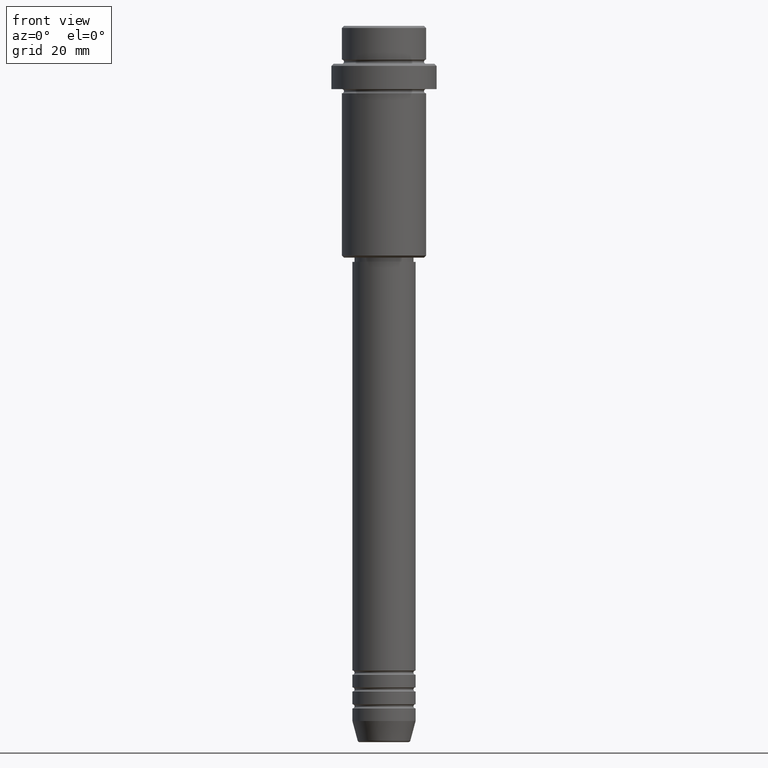
[diagram: clean part render]
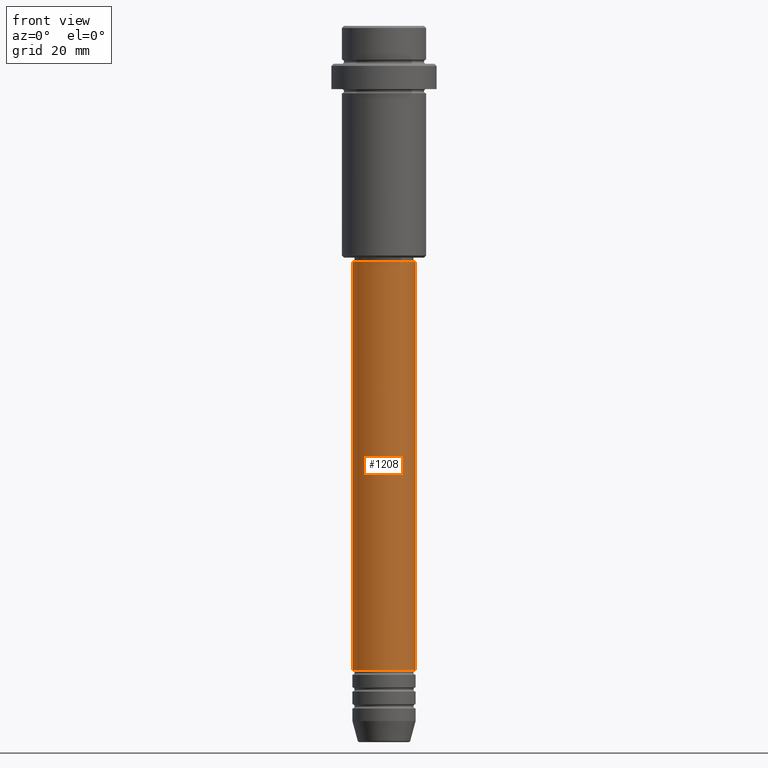
[diagram: same view with one face highlighted and labeled with its STEP entity id]
A machine part, front view. The second image highlights one B-rep face of the part: STEP entity #1208.
In plain terms, the highlighted cylindrical surface (edge-blend (fillet) strip) has radius 7.5 mm, axis along (-0, -0, 1).
Its self-contained STEP definition (entity closure, byte-faithful):
#11 = VECTOR ( 'NONE', #509, 1000.000000000000000 ) ;
#48 = CARTESIAN_POINT ( 'NONE',  ( 7.500000000000000000, 0.000000000000000000, -152.9999999999998579 ) ) ;
#52 = DIRECTION ( 'NONE',  ( -0.000000000000000000, -0.000000000000000000, 1.000000000000000000 ) ) ;
#65 = CARTESIAN_POINT ( 'NONE',  ( 0.000000000000000000, 0.000000000000000000, -55.99999999999998579 ) ) ;
#86 = CARTESIAN_POINT ( 'NONE',  ( -7.500000000000000000, 9.184850993605147944E-16, 0.000000000000000000 ) ) ;
#109 = EDGE_CURVE ( 'NONE', #822, #1231, #1069, .T. ) ;
#125 = ORIENTED_EDGE ( 'NONE', *, *, #972, .T. ) ;
#213 = EDGE_CURVE ( 'NONE', #334, #690, #746, .T. ) ;
#225 = DIRECTION ( 'NONE',  ( 1.000000000000000000, 0.000000000000000000, 0.000000000000000000 ) ) ;
#240 = CARTESIAN_POINT ( 'NONE',  ( 7.500000000000000000, 0.000000000000000000, -55.99999999999998579 ) ) ;
#278 = CYLINDRICAL_SURFACE ( 'NONE', #459, 7.500000000000000000 ) ;
#279 = CIRCLE ( 'NONE', #740, 7.500000000000000000 ) ;
#283 = CARTESIAN_POINT ( 'NONE',  ( 7.500000000000000000, 0.000000000000000000, 0.000000000000000000 ) ) ;
#329 = CIRCLE ( 'NONE', #763, 7.500000000000000000 ) ;
#334 = VERTEX_POINT ( 'NONE', #48 ) ;
#408 = VECTOR ( 'NONE', #748, 1000.000000000000000 ) ;
#459 = AXIS2_PLACEMENT_3D ( 'NONE', #609, #1170, #604 ) ;
#506 = CARTESIAN_POINT ( 'NONE',  ( -7.500000000000000000, 9.184850993605147944E-16, -55.99999999999998579 ) ) ;
#509 = DIRECTION ( 'NONE',  ( -0.000000000000000000, -0.000000000000000000, 1.000000000000000000 ) ) ;
#582 = DIRECTION ( 'NONE',  ( -0.000000000000000000, -0.000000000000000000, 1.000000000000000000 ) ) ;
#590 = FACE_OUTER_BOUND ( 'NONE', #1204, .T. ) ;
#604 = DIRECTION ( 'NONE',  ( 1.000000000000000000, 0.000000000000000000, 0.000000000000000000 ) ) ;
#605 = DIRECTION ( 'NONE',  ( 1.000000000000000000, 0.000000000000000000, 0.000000000000000000 ) ) ;
#609 = CARTESIAN_POINT ( 'NONE',  ( 0.000000000000000000, 0.000000000000000000, 0.000000000000000000 ) ) ;
#690 = VERTEX_POINT ( 'NONE', #240 ) ;
#696 = EDGE_CURVE ( 'NONE', #1231, #690, #329, .T. ) ;
#740 = AXIS2_PLACEMENT_3D ( 'NONE', #1112, #582, #225 ) ;
#746 = LINE ( 'NONE', #283, #408 ) ;
#748 = DIRECTION ( 'NONE',  ( -0.000000000000000000, -0.000000000000000000, 1.000000000000000000 ) ) ;
#763 = AXIS2_PLACEMENT_3D ( 'NONE', #65, #52, #605 ) ;
#822 = VERTEX_POINT ( 'NONE', #944 ) ;
#830 = ORIENTED_EDGE ( 'NONE', *, *, #213, .T. ) ;
#944 = CARTESIAN_POINT ( 'NONE',  ( -7.500000000000000000, 9.184850993605147944E-16, -152.9999999999998579 ) ) ;
#972 = EDGE_CURVE ( 'NONE', #822, #334, #279, .T. ) ;
#1069 = LINE ( 'NONE', #86, #11 ) ;
#1097 = ORIENTED_EDGE ( 'NONE', *, *, #109, .F. ) ;
#1112 = CARTESIAN_POINT ( 'NONE',  ( 0.000000000000000000, 0.000000000000000000, -152.9999999999998579 ) ) ;
#1170 = DIRECTION ( 'NONE',  ( -0.000000000000000000, -0.000000000000000000, 1.000000000000000000 ) ) ;
#1204 = EDGE_LOOP ( 'NONE', ( #1097, #125, #830, #1347 ) ) ;
#1208 = ADVANCED_FACE ( 'NONE', ( #590 ), #278, .T. ) ;
#1231 = VERTEX_POINT ( 'NONE', #506 ) ;
#1347 = ORIENTED_EDGE ( 'NONE', *, *, #696, .F. ) ;